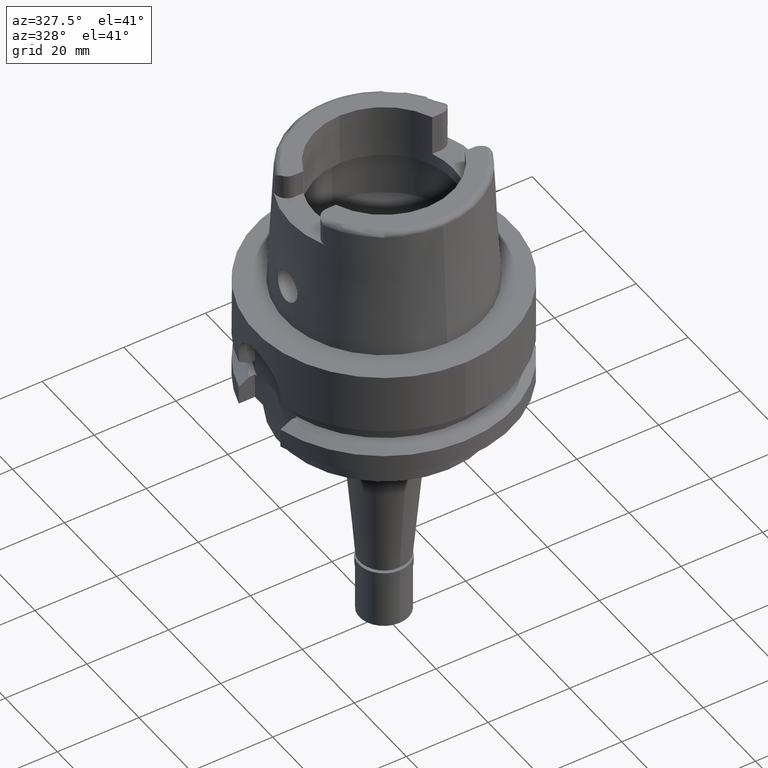
[diagram: clean part render]
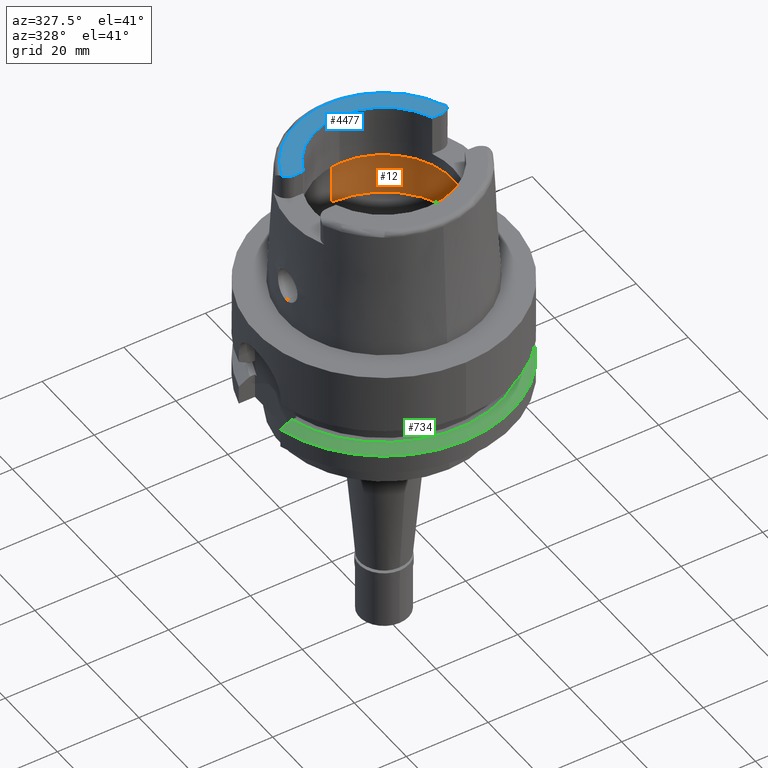
[diagram: same view with three faces highlighted in distinct colors, each labeled with its STEP entity id]
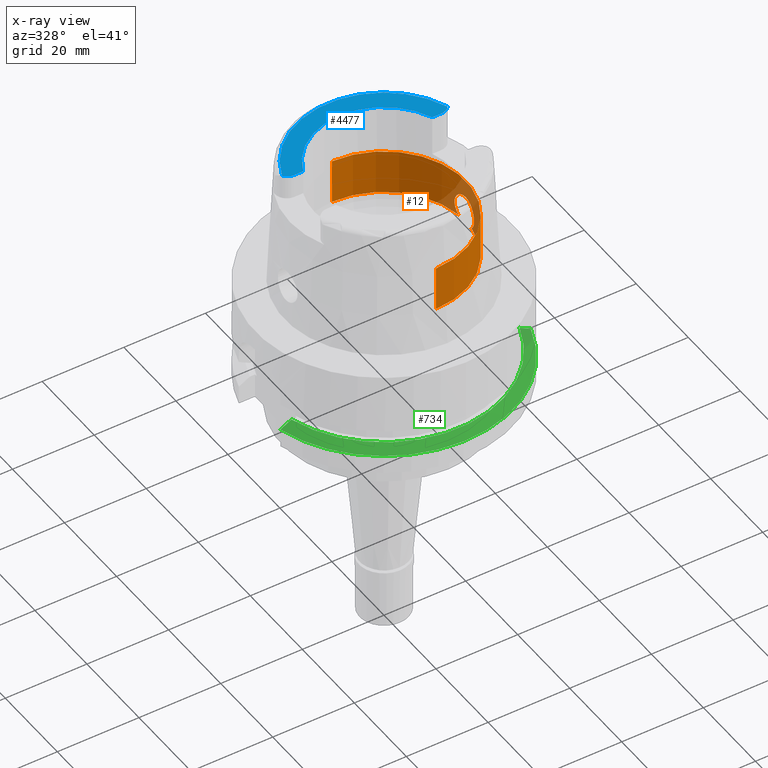
[diagram: x-ray of the same camera — body ghosted, the three highlighted faces saturated]
A machine part, auxiliary view with three faces highlighted in distinct colors.
The next image is the same camera in x-ray (body ghosted, the three faces saturated) — at least one of them is partly hidden behind the body in this view.
Their STEP definitions:

[orange] entity #12 — the highlighted cylindrical surface (partial cylindrical patch) has radius 20 mm, axis along (0, 0, -1).
#12 = ADVANCED_FACE ( 'NONE', ( #1786 ), #2671, .F. ) ;
#24 = CARTESIAN_POINT ( 'NONE',  ( 19.64531570736390265, -3.750134940249887361, 9.033676444194012944 ) ) ;
#56 = CARTESIAN_POINT ( 'NONE',  ( 19.70840739706318701, -3.404480267214187172, 7.416418936092036951 ) ) ;
#71 = DIRECTION ( 'NONE',  ( 0.9922879323327794543, -0.1239542631244973381, 0.0000000000000000000 ) ) ;
#81 = CARTESIAN_POINT ( 'NONE',  ( 19.68802084928616125, -3.518786861498126139, 10.29640922783397627 ) ) ;
#91 = CARTESIAN_POINT ( 'NONE',  ( 19.67704056424693349, 3.580361191080155159, 10.13240256978954079 ) ) ;
#137 = CARTESIAN_POINT ( 'NONE',  ( 19.94835311043330250, -1.436597617940417182, 12.46505559803517471 ) ) ;
#169 = CARTESIAN_POINT ( 'NONE',  ( 0.0000000000000000000, 20.00000000000000000, 17.26397459622000241 ) ) ;
#175 = AXIS2_PLACEMENT_3D ( 'NONE', #2569, #2219, #4746 ) ;
#192 = CARTESIAN_POINT ( 'NONE',  ( 19.90520935016279935, -1.952836836574308288, 12.20839320880666357 ) ) ;
#194 = CARTESIAN_POINT ( 'NONE',  ( 19.94885124748309835, 1.437167585376506240, 12.46885234629120021 ) ) ;
#222 = CARTESIAN_POINT ( 'NONE',  ( 19.90214746416230085, 1.976480307036168282, 12.18758597080004691 ) ) ;
#253 = CARTESIAN_POINT ( 'NONE',  ( 19.65024052641143371, 3.724168513793533197, 9.441791789890606523 ) ) ;
#276 = B_SPLINE_CURVE_WITH_KNOTS ( 'NONE', 3,
 ( #3008, #3438, #3034, #2152, #3902, #5217, #3524, #4958, #4351, #4845, #1782, #2180, #3955, #927, #504, #56, #2978, #1241, #4379, #877, #4731, #3984, #903, #5248, #815, #1726, #3464, #3928, #2665, #24, #1753, #3871, #3490, #1329, #2233, #5277, #3067, #4817, #5628, #387, #81, #2639, #1355, #1698, #3094, #5191, #1270, #4760, #4900, #4549, #4924, #4463, #1889, #2751, #1066, #4119, #1411, #5303, #580, #1011, #2349, #531, #987, #1832, #2729, #3637, #1381, #3152, #4014, #1491, #4521, #3118, #4874, #556, #2700, #2288, #1809, #1041, #192, #4492, #4038, #137, #1861, #3612, #1913, #5368, #2320, #3234, #3662, #4067, #609 ),
 .UNSPECIFIED., .F., .F.,
 ( 4, 2, 2, 2, 1, 1, 1, 2, 2, 2, 2, 1, 1, 2, 2, 2, 2, 2, 2, 2, 2, 1, 1, 1, 2, 2, 2, 2, 1, 1, 1, 1, 1, 2, 2, 2, 2, 2, 1, 1, 2, 2, 2, 2, 1, 1, 2, 2, 2, 2, 1, 1, 2, 2, 4 ),
 ( 0.0000000000000000000, 0.06250000000002224609, 0.09375000000003326506, 0.1093750000000385386, 0.1171875000000410366, 0.1210937500000427158, 0.1230468750000431877, 0.1240234375000434236, 0.1250000000000436595, 0.1875000000000622835, 0.2187500000000714429, 0.2343750000000756617, 0.2421875000000780209, 0.2460937500000795197, 0.2500000000000809908, 0.3125000000001043610, 0.3437500000001160183, 0.3593750000001215694, 0.3750000000001271205, 0.4375000000001493805, 0.4687500000001605382, 0.4843750000001660894, 0.4921875000001686429, 0.4960937500001696976, 0.4980468750001699196, 0.5000000000001701972, 0.5625000000001983969, 0.5937500000002127187, 0.6093750000002200462, 0.6171875000002237099, 0.6210937500002257083, 0.6230468750002269296, 0.6240234375002275957, 0.6245117187502278178, 0.6250000000002281508, 0.6562500000002061684, 0.6718750000001953993, 0.6796875000001899592, 0.6835937500001872946, 0.6855468750001859624, 0.6865234375001852962, 0.6875000000001846301, 0.7187500000001644240, 0.7343750000001543210, 0.7421875000001493250, 0.7460937500001468825, 0.7480468750001456613, 0.7500000000001444400, 0.8125000000001081357, 0.8437500000000898170, 0.8593750000000806022, 0.8671875000000760503, 0.8710937500000738298, 0.8750000000000714984, 1.000000000000000000 ),
 .UNSPECIFIED. ) ;
#278 = CARTESIAN_POINT ( 'NONE',  ( 19.88749001510110759, 2.118426389528428988, 12.09431951522950577 ) ) ;
#348 = CARTESIAN_POINT ( 'NONE',  ( 0.0000000000000000000, -20.00000000000000000, 6.186348233825000875 ) ) ;
#354 = CARTESIAN_POINT ( 'NONE',  ( 19.73923237713701795, 3.219289906653605371, 7.076787339084521733 ) ) ;
#381 = CARTESIAN_POINT ( 'NONE',  ( 19.73733378340243760, 3.230942576387964671, 7.096370270621713772 ) ) ;
#387 = CARTESIAN_POINT ( 'NONE',  ( 19.68688409526767202, -3.525149849114640244, 10.27909457845117025 ) ) ;
#399 = CARTESIAN_POINT ( 'NONE',  ( 20.00000000000000000, 0.0000000000000000000, 12.75000000000000000 ) ) ;
#415 = CARTESIAN_POINT ( 'NONE',  ( 19.75948837328438046, 3.097923994311878815, 6.878338199437929568 ) ) ;
#416 = CIRCLE ( 'NONE', #2606, 20.00000000000000000 ) ;
#429 = CARTESIAN_POINT ( 'NONE',  ( 19.97753441365633620, 0.9488987545576383908, 12.62851629413970223 ) ) ;
#471 = ORIENTED_EDGE ( 'NONE', *, *, #4333, .T. ) ;
#504 = CARTESIAN_POINT ( 'NONE',  ( 19.72347789608156532, -3.316378095381108171, 7.237050604150698341 ) ) ;
#514 = CARTESIAN_POINT ( 'NONE',  ( 19.68999920018523042, 3.507698004682055171, 10.32611433976911108 ) ) ;
#531 = CARTESIAN_POINT ( 'NONE',  ( 19.82047047271212037, -2.674097183593647120, 11.62924223748649766 ) ) ;
#556 = CARTESIAN_POINT ( 'NONE',  ( 19.88059754009180935, -2.182193245750774224, 12.04978898543281218 ) ) ;
#580 = CARTESIAN_POINT ( 'NONE',  ( 19.80340229136451313, -2.798127981002786591, 11.49704738866233455 ) ) ;
#609 = CARTESIAN_POINT ( 'NONE',  ( 20.00000000000000000, 0.0000000000000000000, 12.75000000000000000 ) ) ;
#610 = CARTESIAN_POINT ( 'NONE',  ( 19.78187310633200369, 2.945772961366149634, 11.32055490423338817 ) ) ;
#627 = ORIENTED_EDGE ( 'NONE', *, *, #4224, .T. ) ;
#636 = DIRECTION ( 'NONE',  ( 0.0000000000000000000, 0.0000000000000000000, 1.000000000000000000 ) ) ;
#637 = CARTESIAN_POINT ( 'NONE',  ( 19.97160599503788347, 1.064689415248447180, 12.59570328066359401 ) ) ;
#651 = VERTEX_POINT ( 'NONE', #348 ) ;
#661 = CARTESIAN_POINT ( 'NONE',  ( 19.84321523210197213, 2.499457399598474350, 11.79581294907864475 ) ) ;
#666 = DIRECTION ( 'NONE',  ( 0.0000000000000000000, -1.000000000000000000, 0.0000000000000000000 ) ) ;
#695 = CARTESIAN_POINT ( 'NONE',  ( 19.81942991806373655, 2.683809357144167240, 11.62355172577064977 ) ) ;
#698 = AXIS2_PLACEMENT_3D ( 'NONE', #4413, #4581, #666 ) ;
#775 = EDGE_CURVE ( 'NONE', #2667, #5281, #3168, .T. ) ;
#780 = CARTESIAN_POINT ( 'NONE',  ( 19.66544694971263496, 3.642852112332766179, 8.109921770872499991 ) ) ;
#815 = CARTESIAN_POINT ( 'NONE',  ( 19.65737281075716680, -3.686467767027585385, 8.286629818155811122 ) ) ;
#854 = CARTESIAN_POINT ( 'NONE',  ( 19.99999999999999289, 0.1825185749026723148, 12.75000000000000000 ) ) ;
#877 = CARTESIAN_POINT ( 'NONE',  ( 19.67293848005777690, -3.602367300022550012, 7.956575603849120881 ) ) ;
#878 = CIRCLE ( 'NONE', #4798, 20.00000000000001421 ) ;
#903 = CARTESIAN_POINT ( 'NONE',  ( 19.66678641400356753, -3.635616508765546318, 8.080812714008517972 ) ) ;
#927 = CARTESIAN_POINT ( 'NONE',  ( 19.74135433255782957, -3.206229818326923997, 7.055108985399489718 ) ) ;
#935 = CARTESIAN_POINT ( 'NONE',  ( 19.78590372487723670, 2.918750190344646889, 11.35450059097666475 ) ) ;
#970 = CARTESIAN_POINT ( 'NONE',  ( 19.69858760182435020, 3.459421637848512976, 10.44840537258035162 ) ) ;
#987 = CARTESIAN_POINT ( 'NONE',  ( 19.82539084335995838, -2.637164335422588657, 11.66611456817721049 ) ) ;
#1011 = CARTESIAN_POINT ( 'NONE',  ( 19.80856902489829707, -2.761405627506825944, 11.53791544991316798 ) ) ;
#1041 = CARTESIAN_POINT ( 'NONE',  ( 19.88596288495363851, -2.132710644920020826, 12.08449171053543303 ) ) ;
#1066 = CARTESIAN_POINT ( 'NONE',  ( 19.78015673116718176, -2.957247770292597888, 11.30590299690458878 ) ) ;
#1067 = CARTESIAN_POINT ( 'NONE',  ( 19.66234822554471862, 3.659575287637376384, 8.180853724539090877 ) ) ;
#1094 = CARTESIAN_POINT ( 'NONE',  ( 19.92065291030522900, 1.780457368398211893, 12.30190059605840958 ) ) ;
#1116 = CARTESIAN_POINT ( 'NONE',  ( 19.88673073485987430, 2.125538851603287149, 12.08943455861755822 ) ) ;
#1234 = CARTESIAN_POINT ( 'NONE',  ( 19.74059900907292331, 3.210882726739953785, 7.062800274198756334 ) ) ;
#1241 = CARTESIAN_POINT ( 'NONE',  ( 19.68396095858252082, -3.542167518965385398, 7.765682849860002790 ) ) ;
#1263 = CARTESIAN_POINT ( 'NONE',  ( 19.68340749203921547, 3.545994232770321108, 7.765460295296727544 ) ) ;
#1264 = EDGE_CURVE ( 'NONE', #4404, #5281, #5325, .T. ) ;
#1270 = CARTESIAN_POINT ( 'NONE',  ( 19.74290534198694758, -3.197962528909832347, 10.96115834411948597 ) ) ;
#1307 = VECTOR ( 'NONE', #5584, 1000.000000000000000 ) ;
#1329 = CARTESIAN_POINT ( 'NONE',  ( 19.65307221582974861, -3.709587989394926844, 9.580435956332568281 ) ) ;
#1355 = CARTESIAN_POINT ( 'NONE',  ( 19.68924581249813954, -3.511923176972097327, 10.31488394230955308 ) ) ;
#1381 = CARTESIAN_POINT ( 'NONE',  ( 19.83320967172779348, -2.577566864723306761, 11.72372385127209782 ) ) ;
#1390 = CARTESIAN_POINT ( 'NONE',  ( 19.64926525085835962, 3.729266514740206429, 9.396398733043570317 ) ) ;
#1411 = CARTESIAN_POINT ( 'NONE',  ( 19.78384054668059733, -2.932591936569873159, 11.33746500547148983 ) ) ;
#1437 = CARTESIAN_POINT ( 'NONE',  ( 0.0000000000000000000, 1.446675263833000174E-14, 17.26397459622000241 ) ) ;
#1484 = LINE ( 'NONE', #1936, #5192 ) ;
#1491 = CARTESIAN_POINT ( 'NONE',  ( 19.85491767647225103, -2.405542570905907507, 11.87835038794277942 ) ) ;
#1492 = CARTESIAN_POINT ( 'NONE',  ( 19.68976577264912464, 3.509007065025775418, 10.32265162818899817 ) ) ;
#1526 = CARTESIAN_POINT ( 'NONE',  ( 19.78383589627852501, 2.932642143073249219, 11.33717569783558865 ) ) ;
#1542 = EDGE_CURVE ( 'NONE', #2667, #4217, #1484, .T. ) ;
#1549 = CARTESIAN_POINT ( 'NONE',  ( 19.96963512558901854, 1.100952855817464382, 12.58476100897328287 ) ) ;
#1575 = CARTESIAN_POINT ( 'NONE',  ( 19.83521907691527986, 2.562053816536742357, 11.73831943201496486 ) ) ;
#1656 = CARTESIAN_POINT ( 'NONE',  ( 19.79435850404691166, 2.867676256358196341, 6.576157026699752883 ) ) ;
#1698 = CARTESIAN_POINT ( 'NONE',  ( 19.69942545527569777, -3.454822641941230454, 10.46678682662838433 ) ) ;
#1726 = CARTESIAN_POINT ( 'NONE',  ( 19.65152864159644963, -3.717653019911094425, 8.473893205429442688 ) ) ;
#1753 = CARTESIAN_POINT ( 'NONE',  ( 19.64567465850806371, -3.748158509987724596, 9.126308974278078523 ) ) ;
#1779 = VERTEX_POINT ( 'NONE', #4715 ) ;
#1782 = CARTESIAN_POINT ( 'NONE',  ( 19.74180094134121788, -3.203486338450760140, 7.050593386791649486 ) ) ;
#1786 = FACE_OUTER_BOUND ( 'NONE', #5372, .T. ) ;
#1809 = CARTESIAN_POINT ( 'NONE',  ( 19.88572663246005590, -2.134907147633484215, 12.08296831514026515 ) ) ;
#1816 = CARTESIAN_POINT ( 'NONE',  ( 19.74202111157301331, 3.204436007582609491, 10.95706300584533466 ) ) ;
#1822 = ORIENTED_EDGE ( 'NONE', *, *, #1542, .F. ) ;
#1832 = CARTESIAN_POINT ( 'NONE',  ( 19.82791636121494960, -2.618083499366180789, 11.68490773793731208 ) ) ;
#1861 = CARTESIAN_POINT ( 'NONE',  ( 19.95684512966136737, -1.312082016878396651, 12.51324942671611318 ) ) ;
#1889 = CARTESIAN_POINT ( 'NONE',  ( 19.77936054443427238, -2.962570547047916669, 11.29906432160269603 ) ) ;
#1909 = CARTESIAN_POINT ( 'NONE',  ( 19.84575864665999845, -2.479085262491000030, 6.186348233825000875 ) ) ;
#1913 = CARTESIAN_POINT ( 'NONE',  ( 19.96514636482959304, -1.179500973136106357, 12.55978396785037887 ) ) ;
#1916 = CARTESIAN_POINT ( 'NONE',  ( 19.64995970505671252, 3.725926674469033362, 8.565525736471613527 ) ) ;
#1936 = CARTESIAN_POINT ( 'NONE',  ( 0.0000000000000000000, 20.00000000000000000, 6.186348233825000875 ) ) ;
#1945 = CARTESIAN_POINT ( 'NONE',  ( 19.85441557995349271, 2.408898592069242284, 11.87445684380254640 ) ) ;
#1969 = ORIENTED_EDGE ( 'NONE', *, *, #775, .T. ) ;
#1976 = CARTESIAN_POINT ( 'NONE',  ( 19.92816230007454692, 1.693865912366204540, 12.34698223600462796 ) ) ;
#2003 = CARTESIAN_POINT ( 'NONE',  ( 19.89436975874266622, 2.052924975914541594, 12.13834329024460068 ) ) ;
#2113 = CARTESIAN_POINT ( 'NONE',  ( 19.66486490586644464, 3.645995530117124517, 8.122869138230338848 ) ) ;
#2152 = CARTESIAN_POINT ( 'NONE',  ( 19.76816421412662805, -3.040640749020331768, 6.803175631682188751 ) ) ;
#2180 = CARTESIAN_POINT ( 'NONE',  ( 19.74148763495536940, -3.205411473144139212, 7.053762917386437792 ) ) ;
#2189 = CARTESIAN_POINT ( 'NONE',  ( 20.00000000000000000, 0.0000000000000000000, 12.75000000000000000 ) ) ;
#2219 = DIRECTION ( 'NONE',  ( 0.0000000000000000000, 0.0000000000000000000, -1.000000000000000000 ) ) ;
#2233 = CARTESIAN_POINT ( 'NONE',  ( 19.66382934620745715, -3.651992861362086451, 9.856919119974028476 ) ) ;
#2244 = CARTESIAN_POINT ( 'NONE',  ( 19.71240382657205714, 3.380530187572054146, 10.62543898478790716 ) ) ;
#2288 = CARTESIAN_POINT ( 'NONE',  ( 19.88489416068091131, -2.142640820524476020, 12.07759849158358278 ) ) ;
#2313 = DIRECTION ( 'NONE',  ( 0.0000000000000000000, -8.659189811027998955E-14, 1.000000000000000000 ) ) ;
#2320 = CARTESIAN_POINT ( 'NONE',  ( 19.96804431994024398, -1.129346428242301581, 12.57591766123212551 ) ) ;
#2349 = CARTESIAN_POINT ( 'NONE',  ( 19.81736444569647659, -2.697081036051607761, 11.60561371899296823 ) ) ;
#2350 = CARTESIAN_POINT ( 'NONE',  ( 19.64449217155077321, 3.754390240589868366, 9.032203623880823429 ) ) ;
#2374 = DIRECTION ( 'NONE',  ( 0.0000000000000000000, -1.000000000000000000, 0.0000000000000000000 ) ) ;
#2376 = CARTESIAN_POINT ( 'NONE',  ( 19.96019158322292597, 1.270223922614484469, 12.53225902596271268 ) ) ;
#2405 = CARTESIAN_POINT ( 'NONE',  ( 19.69383964563970935, 3.486144287434217226, 10.38203068907302118 ) ) ;
#2434 = CARTESIAN_POINT ( 'NONE',  ( 19.78100413054671947, 2.951582019536334922, 11.31315261777063874 ) ) ;
#2518 = CARTESIAN_POINT ( 'NONE',  ( 19.73358844643561127, 3.253835603696288992, 7.135536345229595234 ) ) ;
#2569 = CARTESIAN_POINT ( 'NONE',  ( 0.0000000000000000000, 1.300407714776999850E-14, 6.186348233825000875 ) ) ;
#2595 = CARTESIAN_POINT ( 'NONE',  ( 19.98647233510488874, 0.7397714910513729647, 12.67754398216307621 ) ) ;
#2606 = AXIS2_PLACEMENT_3D ( 'NONE', #1437, #636, #2374 ) ;
#2639 = CARTESIAN_POINT ( 'NONE',  ( 19.68878376107303652, -3.514513445192172014, 10.30794996319750823 ) ) ;
#2665 = CARTESIAN_POINT ( 'NONE',  ( 19.64530028357804881, -3.750266916212878332, 8.987242005096698350 ) ) ;
#2667 = VERTEX_POINT ( 'NONE', #5504 ) ;
#2671 = CYLINDRICAL_SURFACE ( 'NONE', #698, 20.00000000000000000 ) ;
#2676 = CARTESIAN_POINT ( 'NONE',  ( 19.70302816960602854, 3.434226658662537179, 10.50680832142648846 ) ) ;
#2700 = CARTESIAN_POINT ( 'NONE',  ( 19.88363245994507622, -2.154327486072810327, 12.06945155650025114 ) ) ;
#2711 = CARTESIAN_POINT ( 'NONE',  ( 19.64763925720662741, 3.737769357176160767, 9.306008049037966856 ) ) ;
#2729 = CARTESIAN_POINT ( 'NONE',  ( 19.83097713064189449, -2.594714568843168756, 11.70741776697324177 ) ) ;
#2751 = CARTESIAN_POINT ( 'NONE',  ( 19.77983806302562897, -2.959378748616766419, 11.30316747725161441 ) ) ;
#2810 = CARTESIAN_POINT ( 'NONE',  ( 19.66384594386981988, 3.651495485959097564, 8.146054644416180324 ) ) ;
#2832 = CARTESIAN_POINT ( 'NONE',  ( 19.78031884956252640, 2.956163993367152187, 11.30729166046852541 ) ) ;
#2859 = CARTESIAN_POINT ( 'NONE',  ( 19.87218554797409098, 2.258464469825200105, 11.99514311895220686 ) ) ;
#2915 = CARTESIAN_POINT ( 'NONE',  ( 19.81730357337836423, 2.706875942019437264, 6.387052714507530204 ) ) ;
#2944 = LINE ( 'NONE', #3394, #1307 ) ;
#2971 = CARTESIAN_POINT ( 'NONE',  ( 19.74104801909926366, 3.208116799716444589, 7.058225548374401193 ) ) ;
#2978 = CARTESIAN_POINT ( 'NONE',  ( 19.68959802157301553, -3.510948669286559465, 7.679141127678811962 ) ) ;
#3008 = CARTESIAN_POINT ( 'NONE',  ( 19.84575864665999845, -2.479085262491000030, 6.186348233825000875 ) ) ;
#3034 = CARTESIAN_POINT ( 'NONE',  ( 19.79433404817708109, -2.867855024194758240, 6.576357815280412744 ) ) ;
#3067 = CARTESIAN_POINT ( 'NONE',  ( 19.67539241808377426, -3.588929279297422781, 10.08830519667100134 ) ) ;
#3076 = CARTESIAN_POINT ( 'NONE',  ( 19.98067476443556245, 0.8792252753221954098, 12.64578329240283594 ) ) ;
#3094 = CARTESIAN_POINT ( 'NONE',  ( 19.71193783935336796, -3.384498022686143415, 10.62594159194792631 ) ) ;
#3118 = CARTESIAN_POINT ( 'NONE',  ( 19.87211782097972446, -2.258124128118669027, 11.99418800683764452 ) ) ;
#3130 = CARTESIAN_POINT ( 'NONE',  ( 19.65365318925219285, 3.706254831914567394, 9.578463084296190644 ) ) ;
#3152 = CARTESIAN_POINT ( 'NONE',  ( 19.83377174171692658, -2.573236091639964140, 11.72781399336379593 ) ) ;
#3168 = CIRCLE ( 'NONE', #175, 20.00000000000000000 ) ;
#3181 = EDGE_CURVE ( 'NONE', #651, #1779, #2944, .T. ) ;
#3234 = CARTESIAN_POINT ( 'NONE',  ( 19.96852092833583825, -1.120934890243326931, 12.57856824220852587 ) ) ;
#3235 = CARTESIAN_POINT ( 'NONE',  ( 19.65906862214168527, 3.677238369657394035, 8.262185411367601873 ) ) ;
#3264 = CARTESIAN_POINT ( 'NONE',  ( 19.80774871301147044, 2.767761011807594151, 11.53200829865563115 ) ) ;
#3289 = CARTESIAN_POINT ( 'NONE',  ( 19.88864901227897519, 2.107512502818172262, 12.10176315676192615 ) ) ;
#3314 = CARTESIAN_POINT ( 'NONE',  ( 19.78042960572375009, 2.955423308343688049, 11.30824033208132207 ) ) ;
#3394 = CARTESIAN_POINT ( 'NONE',  ( 0.0000000000000000000, -20.00000000000000000, 6.186348233825000875 ) ) ;
#3438 = CARTESIAN_POINT ( 'NONE',  ( 19.81729109968259905, -2.706975797350204882, 6.387140696212254554 ) ) ;
#3451 = CARTESIAN_POINT ( 'NONE',  ( 0.0000000000000000000, 1.300407714776999850E-14, 6.186348233825000875 ) ) ;
#3464 = CARTESIAN_POINT ( 'NONE',  ( 19.64669963072480030, -3.743118532106625818, 8.754293389309978579 ) ) ;
#3490 = CARTESIAN_POINT ( 'NONE',  ( 19.64849959213953667, -3.733171434426249213, 9.397626050583692603 ) ) ;
#3504 = CARTESIAN_POINT ( 'NONE',  ( 19.99742330192474071, 0.3677926156081872677, 12.73665121833360026 ) ) ;
#3524 = CARTESIAN_POINT ( 'NONE',  ( 19.74922690538302561, -3.158206851063509291, 6.977893005900021706 ) ) ;
#3559 = CARTESIAN_POINT ( 'NONE',  ( 19.66729742785568291, 3.633426236613052751, 9.946643469820498851 ) ) ;
#3612 = CARTESIAN_POINT ( 'NONE',  ( 19.96086174719143358, -1.250380253538052822, 12.53585696050634901 ) ) ;
#3615 = ORIENTED_EDGE ( 'NONE', *, *, #3181, .T. ) ;
#3637 = CARTESIAN_POINT ( 'NONE',  ( 19.83231338866687565, -2.584458318077549333, 11.71718563264047575 ) ) ;
#3662 = CARTESIAN_POINT ( 'NONE',  ( 19.98972111945660046, -0.7404447257734378951, 12.69640778753342758 ) ) ;
#3663 = CARTESIAN_POINT ( 'NONE',  ( 19.65223303907954033, 3.713852868988292144, 8.472034896040112173 ) ) ;
#3696 = CARTESIAN_POINT ( 'NONE',  ( 19.97035790690767243, 1.087809781924608643, 12.58877632513732259 ) ) ;
#3718 = CARTESIAN_POINT ( 'NONE',  ( 19.84575864665999845, 2.479085262491000030, 6.186348233825000875 ) ) ;
#3723 = CARTESIAN_POINT ( 'NONE',  ( 19.84701852143448519, 2.468950396911406830, 11.82267294971098615 ) ) ;
#3746 = CARTESIAN_POINT ( 'NONE',  ( 19.87981341110794276, 2.190124313678699863, 12.04488238105177089 ) ) ;
#3864 = CARTESIAN_POINT ( 'NONE',  ( 19.72630517451140619, 3.297987557628118793, 7.213843564245943973 ) ) ;
#3871 = CARTESIAN_POINT ( 'NONE',  ( 19.64603230822874025, -3.746239260849479891, 9.173788276797864683 ) ) ;
#3902 = CARTESIAN_POINT ( 'NONE',  ( 19.76081855997778192, -3.086799592715919971, 6.869598999625680769 ) ) ;
#3908 = CARTESIAN_POINT ( 'NONE',  ( 19.97344793155261300, 1.029989321257512636, 12.60591713542729764 ) ) ;
#3928 = CARTESIAN_POINT ( 'NONE',  ( 19.64574616757916559, -3.748060497944869063, 8.847680136408602181 ) ) ;
#3955 = CARTESIAN_POINT ( 'NONE',  ( 19.74128145470307416, -3.206679482935470116, 7.055852837971125169 ) ) ;
#3984 = CARTESIAN_POINT ( 'NONE',  ( 19.66776067867399647, -3.630354762836332849, 8.060246329356179018 ) ) ;
#3994 = CARTESIAN_POINT ( 'NONE',  ( 19.79055329836263155, 2.887303052557825822, 11.39313265592941882 ) ) ;
#4014 = CARTESIAN_POINT ( 'NONE',  ( 19.84507026977670208, -2.486056388903681302, 11.80989418272357483 ) ) ;
#4038 = CARTESIAN_POINT ( 'NONE',  ( 19.94208005205739909, -1.521096556561402968, 12.42895350213196615 ) ) ;
#4067 = CARTESIAN_POINT ( 'NONE',  ( 19.99999999999999645, -0.3645904930012032197, 12.74999999999999822 ) ) ;
#4097 = CARTESIAN_POINT ( 'NONE',  ( 19.64510608185760532, 3.751519019258797272, 8.845743963187434389 ) ) ;
#4119 = CARTESIAN_POINT ( 'NONE',  ( 19.78042331005858756, -2.955463998568659267, 11.30818822452883232 ) ) ;
#4122 = CARTESIAN_POINT ( 'NONE',  ( 19.90846921470155451, 1.911027104447024172, 12.22691716701907438 ) ) ;
#4151 = CARTESIAN_POINT ( 'NONE',  ( 19.69062596699405887, 3.504182566180970237, 10.33537600587440330 ) ) ;
#4177 = CARTESIAN_POINT ( 'NONE',  ( 19.71931362641964824, 3.340323555793577093, 10.70696806545864987 ) ) ;
#4189 = EDGE_CURVE ( 'NONE', #5283, #4404, #276, .T. ) ;
#4217 = VERTEX_POINT ( 'NONE', #169 ) ;
#4224 = EDGE_CURVE ( 'NONE', #1779, #4217, #416, .T. ) ;
#4259 = CARTESIAN_POINT ( 'NONE',  ( 19.70911746163349676, 3.399759097466374502, 7.414425727366182883 ) ) ;
#4314 = CARTESIAN_POINT ( 'NONE',  ( 19.67339687765714018, 3.599897847111511062, 7.936237027512516917 ) ) ;
#4330 = CARTESIAN_POINT ( 'NONE',  ( 19.98969320769897351, 0.6466611053423515498, 12.69501865336697044 ) ) ;
#4333 = EDGE_CURVE ( 'NONE', #5283, #651, #878, .T. ) ;
#4351 = CARTESIAN_POINT ( 'NONE',  ( 19.74419185040612845, -3.188866334492002519, 7.026715884289312264 ) ) ;
#4379 = CARTESIAN_POINT ( 'NONE',  ( 19.67645445735612242, -3.583256916893089450, 7.893307966314199398 ) ) ;
#4404 = VERTEX_POINT ( 'NONE', #2189 ) ;
#4413 = CARTESIAN_POINT ( 'NONE',  ( 0.0000000000000000000, 1.688787936023999784E-14, 37.90000000000000568 ) ) ;
#4418 = CARTESIAN_POINT ( 'NONE',  ( 19.69157384410423717, 3.498865115281148519, 10.34930223375572922 ) ) ;
#4448 = CARTESIAN_POINT ( 'NONE',  ( 19.64700208178292584, 3.741102511256209517, 9.262251686885328184 ) ) ;
#4463 = CARTESIAN_POINT ( 'NONE',  ( 19.77824971973456414, -2.969985440040781910, 11.28949123920091324 ) ) ;
#4492 = CARTESIAN_POINT ( 'NONE',  ( 19.92142574025796264, -1.777641383285198495, 12.30731288648292043 ) ) ;
#4521 = CARTESIAN_POINT ( 'NONE',  ( 19.86802567392649976, -2.293851727639532712, 11.96698555029475308 ) ) ;
#4549 = CARTESIAN_POINT ( 'NONE',  ( 19.77167956124641179, -3.013566616379827590, 11.23208886241349447 ) ) ;
#4550 = CARTESIAN_POINT ( 'NONE',  ( 19.65657741272147518, 3.690818242966330320, 9.670235567806123811 ) ) ;
#4575 = CARTESIAN_POINT ( 'NONE',  ( 19.78036957915552563, 2.955824625725313570, 11.30772697480906430 ) ) ;
#4581 = DIRECTION ( 'NONE',  ( 0.0000000000000000000, 0.0000000000000000000, -1.000000000000000000 ) ) ;
#4607 = CARTESIAN_POINT ( 'NONE',  ( 19.83453718032638236, 2.567329004756048860, 11.73337426122358274 ) ) ;
#4662 = CARTESIAN_POINT ( 'NONE',  ( 19.84575864665999845, 2.479085262491000030, 6.186348233825000875 ) ) ;
#4694 = CARTESIAN_POINT ( 'NONE',  ( 19.72041791630682539, 3.333083558523794121, 7.280834238472255748 ) ) ;
#4715 = CARTESIAN_POINT ( 'NONE',  ( 0.0000000000000000000, -20.00000000000000000, 17.26397459622000241 ) ) ;
#4722 = CARTESIAN_POINT ( 'NONE',  ( 19.74756331185329827, 3.167965560607833186, 6.991936974006074834 ) ) ;
#4731 = CARTESIAN_POINT ( 'NONE',  ( 19.66925173484397860, -3.622301493532881000, 8.029314294089612503 ) ) ;
#4746 = DIRECTION ( 'NONE',  ( 0.0000000000000000000, 1.000000000000000000, 0.0000000000000000000 ) ) ;
#4753 = CARTESIAN_POINT ( 'NONE',  ( 19.70221590749908813, 3.439519066279383530, 7.502961444039298655 ) ) ;
#4760 = CARTESIAN_POINT ( 'NONE',  ( 19.75625145303069274, -3.113618362882420332, 11.09058180588002962 ) ) ;
#4798 = AXIS2_PLACEMENT_3D ( 'NONE', #3451, #5232, #71 ) ;
#4814 = ORIENTED_EDGE ( 'NONE', *, *, #1264, .F. ) ;
#4817 = CARTESIAN_POINT ( 'NONE',  ( 19.67929988656643658, -3.567392066435296716, 10.15774709258444375 ) ) ;
#4845 = CARTESIAN_POINT ( 'NONE',  ( 19.74256024162687595, -3.198831785576798481, 7.042955726903999292 ) ) ;
#4874 = CARTESIAN_POINT ( 'NONE',  ( 19.87784026341232035, -2.207079622098744309, 12.03178926399692372 ) ) ;
#4885 = ORIENTED_EDGE ( 'NONE', *, *, #4189, .F. ) ;
#4886 = CARTESIAN_POINT ( 'NONE',  ( 19.83430270035774612, 2.569141318390281370, 11.73167269178598815 ) ) ;
#4900 = CARTESIAN_POINT ( 'NONE',  ( 19.76317212248916633, -3.069283535514498951, 11.15569892005247432 ) ) ;
#4924 = CARTESIAN_POINT ( 'NONE',  ( 19.77604161172230590, -2.984685054326090103, 11.27034950636415545 ) ) ;
#4958 = CARTESIAN_POINT ( 'NONE',  ( 19.74578410057335276, -3.179177881098513403, 7.011156164311258543 ) ) ;
#4982 = CARTESIAN_POINT ( 'NONE',  ( 19.75979688248946431, 3.093433484795880872, 11.13130414393508616 ) ) ;
#5013 = CARTESIAN_POINT ( 'NONE',  ( 19.79433823573686269, 2.861463918402769480, 11.42420935655624703 ) ) ;
#5037 = CARTESIAN_POINT ( 'NONE',  ( 19.85906759210471861, 2.370149487647941200, 11.90639853122719316 ) ) ;
#5191 = CARTESIAN_POINT ( 'NONE',  ( 19.73466823845537021, -3.248422918839785289, 10.87596688986094229 ) ) ;
#5192 = VECTOR ( 'NONE', #2313, 1000.000000000000000 ) ;
#5217 = CARTESIAN_POINT ( 'NONE',  ( 19.75186651455648601, -3.142103401037558807, 6.952856562381381167 ) ) ;
#5232 = DIRECTION ( 'NONE',  ( 0.0000000000000000000, 0.0000000000000000000, -1.000000000000000000 ) ) ;
#5248 = CARTESIAN_POINT ( 'NONE',  ( 19.66637112085627237, -3.637859164317646776, 8.089712654903113531 ) ) ;
#5277 = CARTESIAN_POINT ( 'NONE',  ( 19.66806475547374333, -3.629095152457239237, 9.949449664810671834 ) ) ;
#5281 = VERTEX_POINT ( 'NONE', #3718 ) ;
#5283 = VERTEX_POINT ( 'NONE', #1909 ) ;
#5303 = CARTESIAN_POINT ( 'NONE',  ( 19.78999273175816853, -2.891849959532696523, 11.38930266997198792 ) ) ;
#5311 = CARTESIAN_POINT ( 'NONE',  ( 19.78059774745110744, 2.954298955522774328, 11.30967970030414982 ) ) ;
#5325 = B_SPLINE_CURVE_WITH_KNOTS ( 'NONE', 3,
 ( #399, #854, #3504, #4330, #2595, #3076, #429, #3908, #637, #3696, #1549, #2376, #194, #1976, #1094, #4122, #222, #2003, #5475, #3289, #278, #1116, #3746, #2859, #5037, #1945, #3723, #661, #5499, #5448, #1575, #4607, #4886, #695, #3264, #5013, #3994, #935, #1526, #610, #2434, #5311, #3314, #2832, #4575, #4982, #1816, #4177, #2244, #2676, #970, #2405, #4418, #4151, #514, #1492, #91, #3559, #4550, #3130, #253, #1390, #2711, #4448, #2350, #4097, #1916, #3663, #5414, #3235, #1067, #2810, #2113, #780, #4314, #1263, #4753, #4259, #4694, #3864, #2518, #381, #354, #5621, #1234, #2971, #4722, #415, #1656, #2915, #4662 ),
 .UNSPECIFIED., .F., .F.,
 ( 4, 2, 2, 1, 1, 2, 2, 2, 2, 1, 1, 1, 2, 2, 2, 2, 1, 1, 1, 2, 2, 2, 2, 1, 1, 1, 1, 2, 2, 2, 2, 1, 1, 1, 2, 2, 2, 2, 2, 2, 2, 2, 1, 1, 2, 2, 2, 2, 1, 1, 1, 1, 2, 2, 2, 4 ),
 ( 0.0000000000000000000, 0.06249999999996186384, 0.09374999999994274025, 0.1093749999999331368, 0.1171874999999283767, 0.1210937499999260175, 0.1249999999999236583, 0.1874999999998846201, 0.2187499999998650524, 0.2343749999998552269, 0.2421874999998504807, 0.2460937499998480105, 0.2480468749998468170, 0.2499999999998456235, 0.2812499999998305800, 0.2968749999998232525, 0.3046874999998194222, 0.3085937499998173128, 0.3105468749998160916, 0.3115234374998155364, 0.3124999999998149258, 0.3437499999997959410, 0.3593749999997866706, 0.3671874999997819522, 0.3710937499997800093, 0.3730468749997795652, 0.3740234374997793987, 0.3745117187497797873, 0.3749999999997802314, 0.4374999999998021027, 0.4687499999998133160, 0.4843749999998189226, 0.4921874999998216982, 0.4960937499998228084, 0.4980468749998233635, 0.4999999999998239186, 0.5624999999998454570, 0.5937499999998561151, 0.6093749999998616662, 0.6249999999998672173, 0.6874999999998899769, 0.7187499999999011902, 0.7343749999999069633, 0.7421874999999096278, 0.7460937499999106270, 0.7499999999999117373, 0.8124999999999347189, 0.8437499999999464873, 0.8593749999999522604, 0.8671874999999549249, 0.8710937499999561462, 0.8730468749999570344, 0.8740234374999571454, 0.8749999999999573674, 0.9374999999999786837, 1.000000000000000000 ),
 .UNSPECIFIED. ) ;
#5368 = CARTESIAN_POINT ( 'NONE',  ( 19.96689660750018902, -1.149374079451804809, 12.56953073952022315 ) ) ;
#5372 = EDGE_LOOP ( 'NONE', ( #471, #3615, #627, #1822, #1969, #4814, #4885 ) ) ;
#5414 = CARTESIAN_POINT ( 'NONE',  ( 19.65662622954850747, 3.690342774946197224, 8.332087000968398272 ) ) ;
#5448 = CARTESIAN_POINT ( 'NONE',  ( 19.83623864804633286, 2.554153021297412618, 11.74570445199303670 ) ) ;
#5475 = CARTESIAN_POINT ( 'NONE',  ( 19.89038032358521590, 2.091139567871603155, 12.11286668043692849 ) ) ;
#5499 = CARTESIAN_POINT ( 'NONE',  ( 19.83859473108618232, 2.535803259838840251, 11.76270817416899561 ) ) ;
#5504 = CARTESIAN_POINT ( 'NONE',  ( 0.0000000000000000000, 20.00000000000000000, 6.186348233825000875 ) ) ;
#5584 = DIRECTION ( 'NONE',  ( 0.0000000000000000000, 8.627118737654001074E-14, 1.000000000000000000 ) ) ;
#5621 = CARTESIAN_POINT ( 'NONE',  ( 19.74005161557711574, 3.214251528823491633, 7.068395026932978276 ) ) ;
#5628 = CARTESIAN_POINT ( 'NONE',  ( 19.68428496485710966, -3.539667587853537523, 10.23867083674305256 ) ) ;

[blue] entity #4477 — the highlighted planar face has unit normal (0, 0, -1).
#47 = CIRCLE ( 'NONE', #4784, 17.00000000000000000 ) ;
#58 = AXIS2_PLACEMENT_3D ( 'NONE', #754, #5591, #1662 ) ;
#136 = DIRECTION ( 'NONE',  ( 0.0000000000000000000, 0.0000000000000000000, 1.000000000000000000 ) ) ;
#258 = DIRECTION ( 'NONE',  ( 0.0000000000000000000, 0.0000000000000000000, 1.000000000000000000 ) ) ;
#303 = CARTESIAN_POINT ( 'NONE',  ( 0.0000000000000000000, 1.601838013285000038E-14, 32.00000000000000000 ) ) ;
#328 = VERTEX_POINT ( 'NONE', #2150 ) ;
#434 = EDGE_CURVE ( 'NONE', #2886, #599, #5547, .T. ) ;
#596 = CARTESIAN_POINT ( 'NONE',  ( 15.80149043602999903, 6.270000000000000462, 32.00000000000000000 ) ) ;
#599 = VERTEX_POINT ( 'NONE', #2540 ) ;
#754 = CARTESIAN_POINT ( 'NONE',  ( -17.98999999999999844, 9.150000000000000355, 32.00000000000000000 ) ) ;
#783 = DIRECTION ( 'NONE',  ( 0.0000000000000000000, 0.0000000000000000000, -1.000000000000000000 ) ) ;
#891 = VERTEX_POINT ( 'NONE', #1281 ) ;
#912 = FACE_OUTER_BOUND ( 'NONE', #4620, .T. ) ;
#959 = CARTESIAN_POINT ( 'NONE',  ( 0.0000000000000000000, 1.688787936023999784E-14, 32.00000000000000000 ) ) ;
#971 = VECTOR ( 'NONE', #4829, 1000.000000000000000 ) ;
#990 = EDGE_CURVE ( 'NONE', #891, #2208, #1452, .T. ) ;
#1073 = CARTESIAN_POINT ( 'NONE',  ( 0.0000000000000000000, 1.688787936023999784E-14, 32.00000000000000000 ) ) ;
#1200 = DIRECTION ( 'NONE',  ( 0.0000000000000000000, 0.0000000000000000000, -1.000000000000000000 ) ) ;
#1281 = CARTESIAN_POINT ( 'NONE',  ( 15.80149043602999903, 6.270000000000000462, 32.00000000000000000 ) ) ;
#1356 = AXIS2_PLACEMENT_3D ( 'NONE', #1635, #1200, #3027 ) ;
#1393 = CARTESIAN_POINT ( 'NONE',  ( 17.98999999999999844, 6.270000000000000462, 32.00000000000000000 ) ) ;
#1402 = EDGE_CURVE ( 'NONE', #599, #2208, #4453, .T. ) ;
#1452 = LINE ( 'NONE', #596, #4447 ) ;
#1635 = CARTESIAN_POINT ( 'NONE',  ( 17.98999999999999844, 9.150000000000000355, 32.00000000000000000 ) ) ;
#1662 = DIRECTION ( 'NONE',  ( 0.0000000000000000000, -1.000000000000000000, 0.0000000000000000000 ) ) ;
#1793 = CARTESIAN_POINT ( 'NONE',  ( 0.0000000000000000000, 1.616533774874999676E-14, 32.00000000000000000 ) ) ;
#1836 = ORIENTED_EDGE ( 'NONE', *, *, #990, .T. ) ;
#1849 = ORIENTED_EDGE ( 'NONE', *, *, #1402, .F. ) ;
#2138 = CIRCLE ( 'NONE', #58, 2.880000000000000782 ) ;
#2150 = CARTESIAN_POINT ( 'NONE',  ( -15.80149043602999903, 6.270000000000000462, 32.00000000000000000 ) ) ;
#2156 = VERTEX_POINT ( 'NONE', #2597 ) ;
#2208 = VERTEX_POINT ( 'NONE', #1393 ) ;
#2280 = VERTEX_POINT ( 'NONE', #3410 ) ;
#2531 = ORIENTED_EDGE ( 'NONE', *, *, #434, .F. ) ;
#2540 = CARTESIAN_POINT ( 'NONE',  ( 20.26871835884000106, 7.388795116668999796, 32.00000000000000000 ) ) ;
#2597 = CARTESIAN_POINT ( 'NONE',  ( -17.98999999999999844, 6.270000000000000462, 32.00000000000000000 ) ) ;
#2664 = CARTESIAN_POINT ( 'NONE',  ( -20.26871835884000106, 7.388795116669998997, 32.00000000000000000 ) ) ;
#2728 = DIRECTION ( 'NONE',  ( 0.9294994374136111848, 0.3688235294118045182, 0.0000000000000000000 ) ) ;
#2777 = AXIS2_PLACEMENT_3D ( 'NONE', #1073, #258, #2952 ) ;
#2886 = VERTEX_POINT ( 'NONE', #2664 ) ;
#2932 = EDGE_CURVE ( 'NONE', #891, #2280, #47, .T. ) ;
#2952 = DIRECTION ( 'NONE',  ( 0.0000000000000000000, 1.000000000000000000, 0.0000000000000000000 ) ) ;
#3016 = DIRECTION ( 'NONE',  ( 0.0000000000000000000, -1.000000000000000000, 0.0000000000000000000 ) ) ;
#3027 = DIRECTION ( 'NONE',  ( 0.7912216523763718756, -0.6115294733786784676, 0.0000000000000000000 ) ) ;
#3052 = CIRCLE ( 'NONE', #2777, 17.00000000000000000 ) ;
#3077 = LINE ( 'NONE', #3884, #971 ) ;
#3194 = DIRECTION ( 'NONE',  ( 1.000000000000000000, -8.644330667353000255E-14, 0.0000000000000000000 ) ) ;
#3224 = ORIENTED_EDGE ( 'NONE', *, *, #4474, .T. ) ;
#3410 = CARTESIAN_POINT ( 'NONE',  ( 0.0000000000000000000, 17.00000000000000000, 32.00000000000000000 ) ) ;
#3884 = CARTESIAN_POINT ( 'NONE',  ( -17.98999999999999844, 6.270000000000000462, 32.00000000000000000 ) ) ;
#3919 = EDGE_CURVE ( 'NONE', #2280, #328, #3052, .T. ) ;
#4092 = EDGE_CURVE ( 'NONE', #2156, #2886, #2138, .T. ) ;
#4154 = AXIS2_PLACEMENT_3D ( 'NONE', #1793, #5199, #3016 ) ;
#4248 = ORIENTED_EDGE ( 'NONE', *, *, #2932, .F. ) ;
#4256 = AXIS2_PLACEMENT_3D ( 'NONE', #303, #783, #5588 ) ;
#4387 = PLANE ( 'NONE',  #4154 ) ;
#4447 = VECTOR ( 'NONE', #3194, 1000.000000000000000 ) ;
#4453 = CIRCLE ( 'NONE', #1356, 2.880000000000003446 ) ;
#4474 = EDGE_CURVE ( 'NONE', #2156, #328, #3077, .T. ) ;
#4477 = ADVANCED_FACE ( 'NONE', ( #912 ), #4387, .F. ) ;
#4620 = EDGE_LOOP ( 'NONE', ( #5423, #4248, #1836, #1849, #2531, #5214, #3224 ) ) ;
#4784 = AXIS2_PLACEMENT_3D ( 'NONE', #959, #136, #2728 ) ;
#4829 = DIRECTION ( 'NONE',  ( 1.000000000000000000, 8.684914379406999996E-14, 0.0000000000000000000 ) ) ;
#5199 = DIRECTION ( 'NONE',  ( 0.0000000000000000000, 0.0000000000000000000, -1.000000000000000000 ) ) ;
#5214 = ORIENTED_EDGE ( 'NONE', *, *, #4092, .F. ) ;
#5423 = ORIENTED_EDGE ( 'NONE', *, *, #3919, .F. ) ;
#5547 = CIRCLE ( 'NONE', #4256, 21.57348458609000375 ) ;
#5588 = DIRECTION ( 'NONE',  ( 0.0009289215035771249650, 0.9999995685523269673, 0.0000000000000000000 ) ) ;
#5591 = DIRECTION ( 'NONE',  ( 0.0000000000000000000, 0.0000000000000000000, -1.000000000000000000 ) ) ;

[green] entity #734 — the highlighted conical surface has half-angle 60 deg.
#149 = DIRECTION ( 'NONE',  ( 0.0000000000000000000, -1.000000000000000000, 0.0000000000000000000 ) ) ;
#190 = ORIENTED_EDGE ( 'NONE', *, *, #4541, .F. ) ;
#392 = EDGE_CURVE ( 'NONE', #3012, #2026, #2319, .T. ) ;
#441 = CONICAL_SURFACE ( 'NONE', #4169, 30.19879763209999979, 1.047197551196400456 ) ;
#511 = CARTESIAN_POINT ( 'NONE',  ( 0.0000000000000000000, 0.0000000000000000000, -21.37749907476000288 ) ) ;
#734 = ADVANCED_FACE ( 'NONE', ( #1108 ), #441, .T. ) ;
#937 = CARTESIAN_POINT ( 'NONE',  ( 29.87630867620000075, -9.000000693160998821, -21.20564998867000028 ) ) ;
#1108 = FACE_OUTER_BOUND ( 'NONE', #4807, .T. ) ;
#1139 = CARTESIAN_POINT ( 'NONE',  ( 0.0000000000000000000, 0.0000000000000000000, -20.62624953738000144 ) ) ;
#1327 = CARTESIAN_POINT ( 'NONE',  ( -30.16030921349999971, -7.999999897283999850, -21.20612657009000301 ) ) ;
#1448 = CARTESIAN_POINT ( 'NONE',  ( 27.46035049392999738, -9.000000213910999136, -19.87500000000000000 ) ) ;
#1473 = CARTESIAN_POINT ( 'NONE',  ( 30.18691769625000276, -9.000000000000000000, -21.37749907476000288 ) ) ;
#1602 = CIRCLE ( 'NONE', #2511, 28.89759526419000224 ) ;
#1817 = DIRECTION ( 'NONE',  ( 0.0000000000000000000, 0.0000000000000000000, -1.000000000000000000 ) ) ;
#2026 = VERTEX_POINT ( 'NONE', #4031 ) ;
#2317 = CIRCLE ( 'NONE', #5521, 31.50000000000000000 ) ;
#2319 = B_SPLINE_CURVE_WITH_KNOTS ( 'NONE', 3,
 ( #5158, #1327, #3488, #5245, #3065, #4815 ),
 .UNSPECIFIED., .F., .F.,
 ( 4, 1, 1, 4 ),
 ( 0.0000000000000000000, 0.3333333333333000081, 0.6666666666667000474, 1.000000000000000000 ),
 .UNSPECIFIED. ) ;
#2368 = EDGE_CURVE ( 'NONE', #5130, #3012, #2317, .T. ) ;
#2511 = AXIS2_PLACEMENT_3D ( 'NONE', #4047, #1817, #149 ) ;
#2660 = B_SPLINE_CURVE_WITH_KNOTS ( 'NONE', 3,
 ( #1448, #5286, #3102, #5312, #937, #1473 ),
 .UNSPECIFIED., .F., .F.,
 ( 4, 1, 1, 4 ),
 ( 0.0000000000000000000, 0.3333333333333000081, 0.6666666666667000474, 1.000000000000000000 ),
 .UNSPECIFIED. ) ;
#2811 = CARTESIAN_POINT ( 'NONE',  ( 30.18691769625000276, -9.000000000000000000, -21.37749907476000288 ) ) ;
#2882 = DIRECTION ( 'NONE',  ( 0.0000000000000000000, 0.0000000000000000000, -1.000000000000000000 ) ) ;
#2927 = VERTEX_POINT ( 'NONE', #4899 ) ;
#3012 = VERTEX_POINT ( 'NONE', #3744 ) ;
#3065 = CARTESIAN_POINT ( 'NONE',  ( -28.06107117498000392, -7.999999497287999972, -20.03749548659999746 ) ) ;
#3102 = CARTESIAN_POINT ( 'NONE',  ( 28.35136612795000133, -8.999999992596000808, -20.36434801963000396 ) ) ;
#3336 = DIRECTION ( 'NONE',  ( 0.0000000000000000000, -1.000000000000000000, 0.0000000000000000000 ) ) ;
#3488 = CARTESIAN_POINT ( 'NONE',  ( -29.55120341656999727, -7.999999980905999841, -20.86632412779000134 ) ) ;
#3499 = DIRECTION ( 'NONE',  ( 0.0000000000000000000, -1.000000000000000000, 0.0000000000000000000 ) ) ;
#3744 = CARTESIAN_POINT ( 'NONE',  ( -30.46719550012999989, -7.999999897283999850, -21.37749814231999679 ) ) ;
#4031 = CARTESIAN_POINT ( 'NONE',  ( -27.76817315273000375, -7.999999497287999972, -19.87500000000000000 ) ) ;
#4047 = CARTESIAN_POINT ( 'NONE',  ( 0.0000000000000000000, 0.0000000000000000000, -19.87500000000000000 ) ) ;
#4169 = AXIS2_PLACEMENT_3D ( 'NONE', #1139, #2882, #3336 ) ;
#4304 = ORIENTED_EDGE ( 'NONE', *, *, #4654, .T. ) ;
#4541 = EDGE_CURVE ( 'NONE', #2927, #5130, #2660, .T. ) ;
#4654 = EDGE_CURVE ( 'NONE', #2927, #2026, #1602, .T. ) ;
#4807 = EDGE_LOOP ( 'NONE', ( #5548, #190, #4304, #5527 ) ) ;
#4815 = CARTESIAN_POINT ( 'NONE',  ( -27.76817315273000375, -7.999999497287999972, -19.87500000000000000 ) ) ;
#4899 = CARTESIAN_POINT ( 'NONE',  ( 27.46035049392999738, -9.000000213910999136, -19.87500000000000000 ) ) ;
#5130 = VERTEX_POINT ( 'NONE', #2811 ) ;
#5158 = CARTESIAN_POINT ( 'NONE',  ( -30.46719550012999989, -7.999999897283999850, -21.37749814231999679 ) ) ;
#5245 = CARTESIAN_POINT ( 'NONE',  ( -28.65153661399000029, -8.000000220904000869, -20.36547743704000268 ) ) ;
#5282 = DIRECTION ( 'NONE',  ( 0.0000000000000000000, 0.0000000000000000000, -1.000000000000000000 ) ) ;
#5286 = CARTESIAN_POINT ( 'NONE',  ( 27.75566223801000021, -9.000000213910999136, -20.03701846256000252 ) ) ;
#5312 = CARTESIAN_POINT ( 'NONE',  ( 29.26021339970000312, -8.999999705046000997, -20.86519866002999990 ) ) ;
#5521 = AXIS2_PLACEMENT_3D ( 'NONE', #511, #5282, #3499 ) ;
#5527 = ORIENTED_EDGE ( 'NONE', *, *, #392, .F. ) ;
#5548 = ORIENTED_EDGE ( 'NONE', *, *, #2368, .F. ) ;